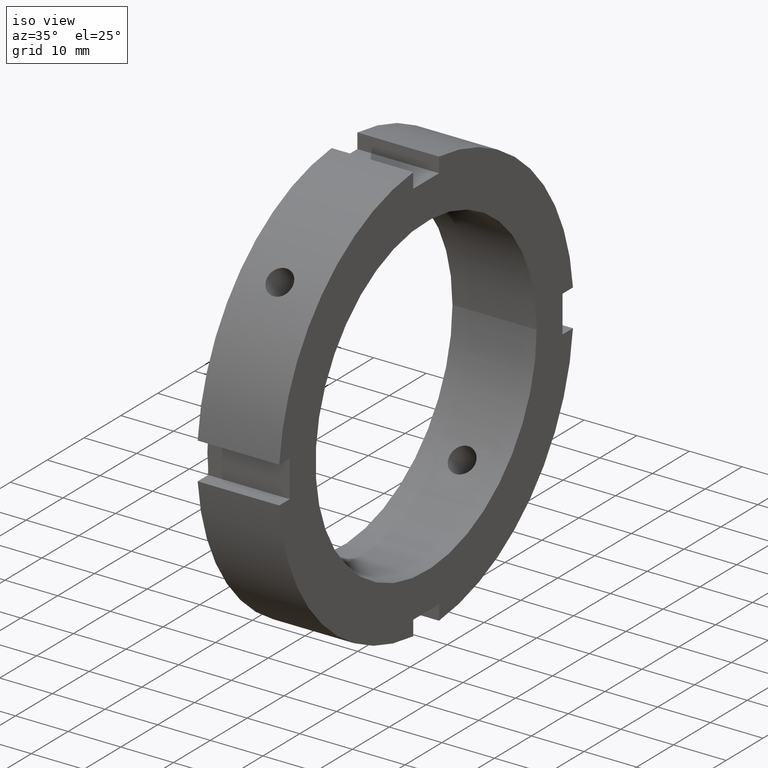
[diagram: clean part render]
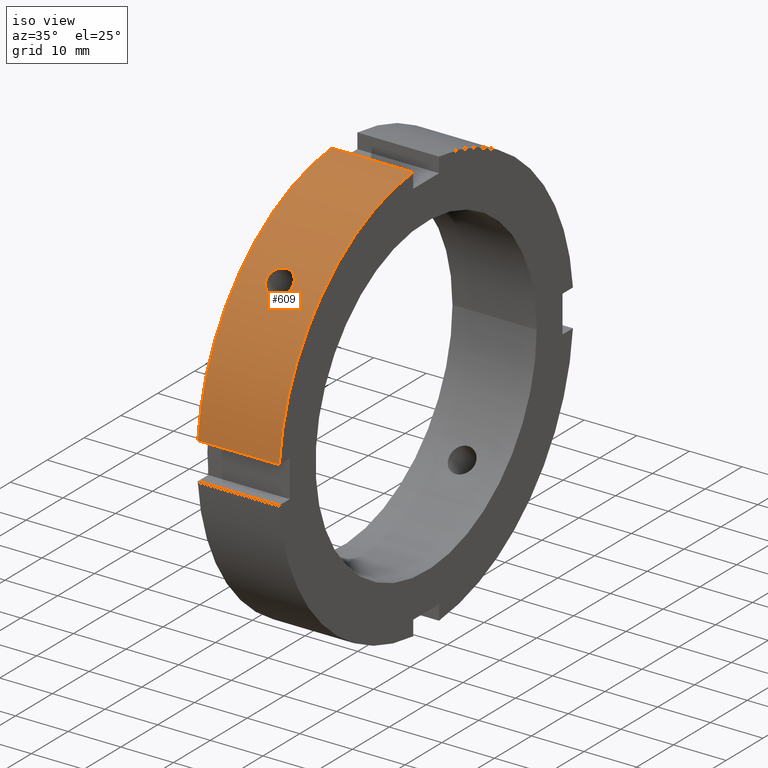
[diagram: same view with one face highlighted and labeled with its STEP entity id]
A machine part, iso view. The second image highlights one B-rep face of the part: STEP entity #609.
In plain terms, the highlighted cylindrical surface (partial cylindrical patch) has radius 40 mm, axis along (1, 0, 0).
Its self-contained STEP definition (entity closure, byte-faithful):
#73=CARTESIAN_POINT('',(7.999999999999996,-29.969218837701629,26.492374794607393));
#74=VERTEX_POINT('',#73);
#75=CARTESIAN_POINT('',(7.999999999999995,-29.969218837701629,26.492374794607404));
#76=CARTESIAN_POINT('',(7.691221692605812,-29.969218837701629,26.492374794607404));
#77=CARTESIAN_POINT('',(7.361915038573413,-29.928366086232447,26.538814874465437));
#78=CARTESIAN_POINT('',(6.756214490992054,-29.761027871350791,26.726335542823570));
#79=CARTESIAN_POINT('',(6.479813990784543,-29.634399837090278,26.867267508652631));
#80=CARTESIAN_POINT('',(6.043342071509466,-29.339193596493210,27.189325775889390));
#81=CARTESIAN_POINT('',(5.854148500745373,-29.150894962497290,27.391916544865751));
#82=CARTESIAN_POINT('',(5.603225312618793,-28.732677626272633,27.830289354216220));
#83=CARTESIAN_POINT('',(5.541499999999996,-28.502610377065487,28.065932117858292));
#84=CARTESIAN_POINT('',(5.541499999999996,-28.065932117858257,28.502610377065523));
#85=CARTESIAN_POINT('',(5.603225312618799,-27.830289354216173,28.732677626272665));
#86=CARTESIAN_POINT('',(5.854148500745378,-27.391916544865708,29.150894962497311));
#87=CARTESIAN_POINT('',(6.043342071509463,-27.189325775889355,29.339193596493249));
#88=CARTESIAN_POINT('',(6.479813990784543,-26.867267508652596,29.634399837090314));
#89=CARTESIAN_POINT('',(6.756214490992054,-26.726335542823534,29.761027871350827));
#90=CARTESIAN_POINT('',(7.361915038573414,-26.538814874465402,29.928366086232483));
#91=CARTESIAN_POINT('',(7.691221692605814,-26.492374794607365,29.969218837701664));
#92=CARTESIAN_POINT('',(8.308778307394180,-26.492374794607365,29.969218837701664));
#93=CARTESIAN_POINT('',(8.638084961426577,-26.538814874465402,29.928366086232483));
#94=CARTESIAN_POINT('',(9.243785509007935,-26.726335542823534,29.761027871350827));
#95=CARTESIAN_POINT('',(9.520186009215450,-26.867267508652596,29.634399837090307));
#96=CARTESIAN_POINT('',(9.956657928490529,-27.189325775889355,29.339193596493249));
#97=CARTESIAN_POINT('',(10.145851499254615,-27.391916544865708,29.150894962497311));
#98=CARTESIAN_POINT('',(10.396774687381194,-27.830289354216173,28.732677626272665));
#99=CARTESIAN_POINT('',(10.458499999999997,-28.065932117858257,28.502610377065523));
#100=CARTESIAN_POINT('',(10.458499999999997,-28.502610377065487,28.065932117858292));
#101=CARTESIAN_POINT('',(10.396774687381198,-28.732677626272629,27.830289354216209));
#102=CARTESIAN_POINT('',(10.145851499254618,-29.150894962497283,27.391916544865744));
#103=CARTESIAN_POINT('',(9.956657928490527,-29.339193596493210,27.189325775889390));
#104=CARTESIAN_POINT('',(9.520186009215450,-29.634399837090282,26.867267508652635));
#105=CARTESIAN_POINT('',(9.243785509007939,-29.761027871350791,26.726335542823570));
#106=CARTESIAN_POINT('',(8.638084961426582,-29.928366086232451,26.538814874465437));
#107=CARTESIAN_POINT('',(8.308778307394181,-29.969218837701629,26.492374794607404));
#108=CARTESIAN_POINT('',(7.999999999999997,-29.969218837701629,26.492374794607404));
#109=B_SPLINE_CURVE_WITH_KNOTS('',3,(#75,#76,#77,#78,#79,#80,#81,#82,#83,#84,#85,#86,#87,#88,#89,#90,#91,#92,#93,#94,#95,#96,#97,#98,#99,#100,#101,#102,#103,#104,#105,#106,#107,#108),.UNSPECIFIED.,.T.,.U.,(4,2,2,2,2,2,2,2,2,2,2,2,2,2,2,2,4),(0.0,0.092633492218255,0.185266984436510,0.277900431921161,0.370533879405812,0.463167326890463,0.555800774375114,0.648434266593369,0.741067758811624,0.833701251029879,0.926334743248133,1.018968190732785,1.111601638217436,1.204235085702087,1.296868533186738,1.389502025404993,1.482135517623248),.UNSPECIFIED.);
#110=EDGE_CURVE('',#74,#74,#109,.T.);
#353=CARTESIAN_POINT('',(0.499999999999989,-39.846580781793556,3.500000000000003));
#354=VERTEX_POINT('',#353);
#369=CARTESIAN_POINT('',(15.999999999999993,-39.846580781793556,3.500000000000003));
#370=VERTEX_POINT('',#369);
#377=CARTESIAN_POINT('',(0.499999999999990,-39.846580781793556,3.500000000000004));
#378=DIRECTION('',(1.0,0.0,0.0));
#379=VECTOR('',#378,15.500000000000004);
#380=LINE('',#377,#379);
#381=EDGE_CURVE('',#354,#370,#380,.T.);
#493=CARTESIAN_POINT('',(0.499999999999989,-3.499999999999996,39.846580781793556));
#494=VERTEX_POINT('',#493);
#503=CARTESIAN_POINT('',(15.999999999999993,-3.499999999999996,39.846580781793556));
#504=VERTEX_POINT('',#503);
#505=CARTESIAN_POINT('',(15.999999999999993,-3.499999999999996,39.846580781793556));
#506=DIRECTION('',(-1.0,0.0,0.0));
#507=VECTOR('',#506,15.500000000000004);
#508=LINE('',#505,#507);
#509=EDGE_CURVE('',#504,#494,#508,.T.);
#583=CARTESIAN_POINT('',(8.249999999999989,0.0,0.0));
#584=DIRECTION('',(1.0,0.0,0.0));
#585=DIRECTION('',(0.0,1.0,0.0));
#586=AXIS2_PLACEMENT_3D('',#583,#584,#585);
#587=CYLINDRICAL_SURFACE('',#586,39.999999999999993);
#588=ORIENTED_EDGE('',*,*,#381,.T.);
#589=CARTESIAN_POINT('',(15.999999999999988,0.0,0.0));
#590=DIRECTION('',(1.0,0.0,0.0));
#591=DIRECTION('',(0.0,1.0,0.0));
#592=AXIS2_PLACEMENT_3D('',#589,#590,#591);
#593=CIRCLE('',#592,39.999999999999993);
#594=EDGE_CURVE('',#504,#370,#593,.T.);
#595=ORIENTED_EDGE('',*,*,#594,.F.);
#596=ORIENTED_EDGE('',*,*,#509,.T.);
#597=CARTESIAN_POINT('',(0.499999999999989,0.0,0.0));
#598=DIRECTION('',(1.0,0.0,0.0));
#599=DIRECTION('',(0.0,1.0,0.0));
#600=AXIS2_PLACEMENT_3D('',#597,#598,#599);
#601=CIRCLE('',#600,39.999999999999993);
#602=EDGE_CURVE('',#494,#354,#601,.T.);
#603=ORIENTED_EDGE('',*,*,#602,.T.);
#604=EDGE_LOOP('',(#588,#595,#596,#603));
#605=FACE_OUTER_BOUND('',#604,.T.);
#606=ORIENTED_EDGE('',*,*,#110,.T.);
#607=EDGE_LOOP('',(#606));
#608=FACE_BOUND('',#607,.T.);
#609=ADVANCED_FACE('',(#605,#608),#587,.T.);